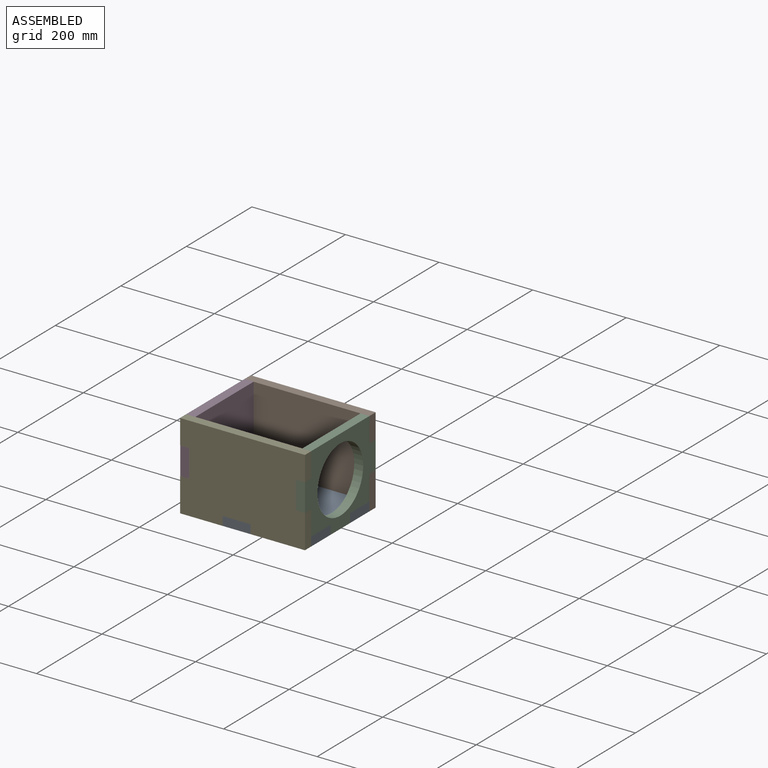
[diagram: assembled view]
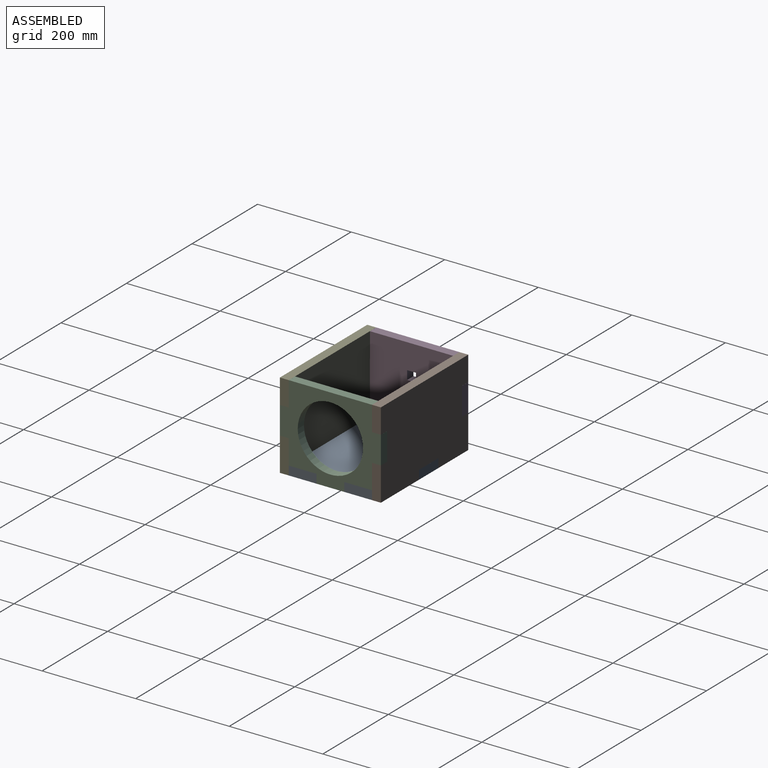
[diagram: assembled view, second angle]
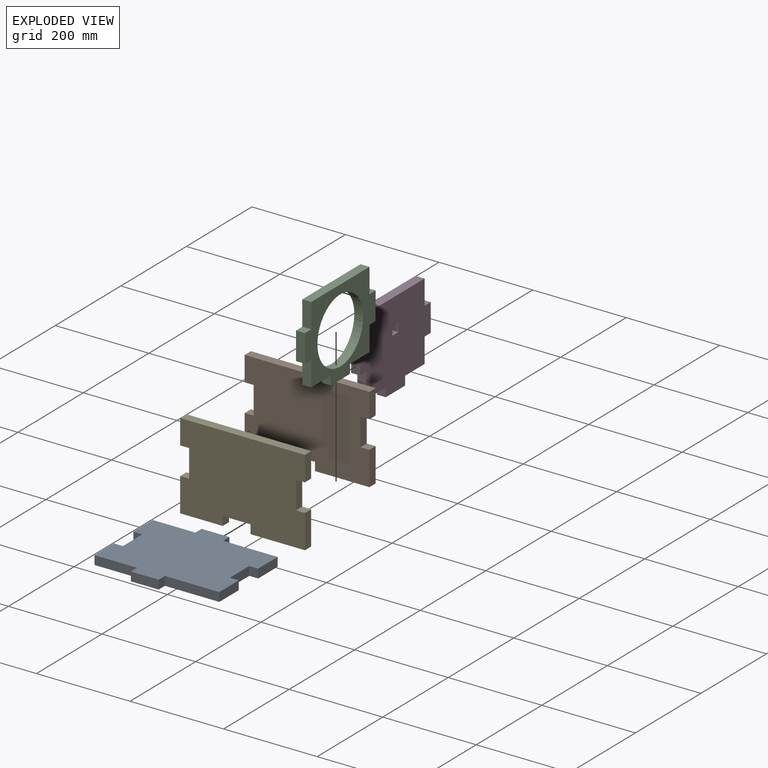
[diagram: exploded view]
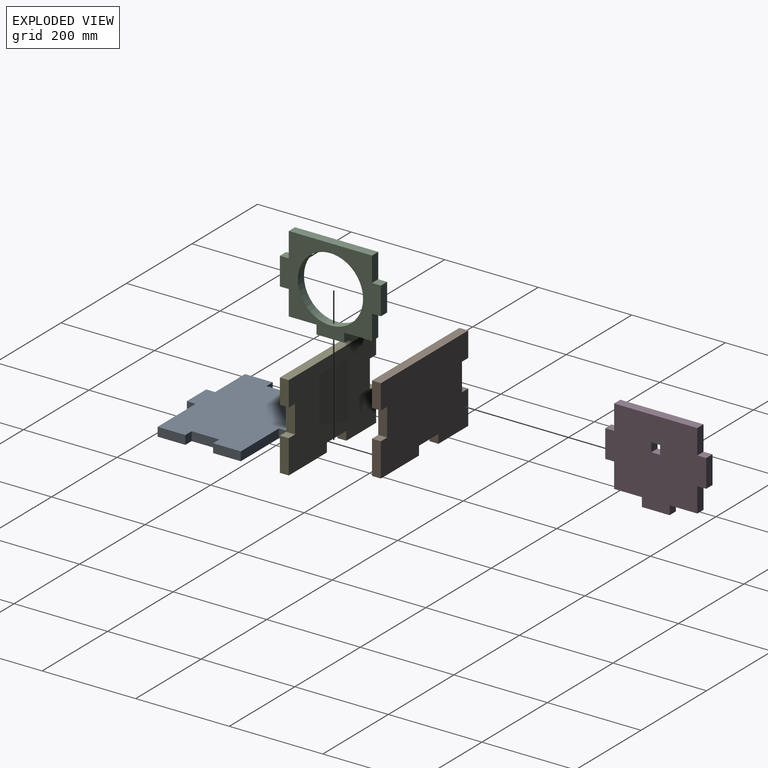
[diagram: exploded view, second angle]
ASSEMBLY  parts=5 mates=4
PART A: 22 faces, bbox 266.7x215.9x19.1 mm
  f0: plane 59.31x19.05mm, normal (1,0,0), area 1129.8mm2, adj f1,f19,f20,f21
  f1: plane 19.05x19.05mm, normal (0,1,0), area 362.9mm2, adj f0,f2,f20,f21
  f2: plane 59.31x19.05mm, normal (1,0,0), area 1129.8mm2, adj f1,f3,f20,f21
  f3: plane 19.05x19.05mm, normal (0,-1,0), area 362.9mm2, adj f2,f4,f20,f21
  f4: plane 59.18x19.05mm, normal (1,0,0), area 1127.4mm2, adj f3,f5,f20,f21
  f5: plane 116.42x19.05mm, normal (0,1,0), area 2217.7mm2, adj f4,f6,f20,f21
  f6: plane 19.05x19.05mm, normal (1,0,0), area 362.9mm2, adj f5,f7,f20,f21
  f7: plane 59.27x19.05mm, normal (0,1,0), area 1129mm2, adj f6,f8,f20,f21
  f8: plane 19.05x19.05mm, normal (-1,0,0), area 362.9mm2, adj f7,f9,f20,f21
  f9: plane 91.02x19.05mm, normal (0,1,0), area 1733.9mm2, adj f8,f10,f20,f21
  f10: plane 59.18x19.05mm, normal (-1,0,0), area 1127.4mm2, adj f9,f11,f20,f21
  f11: plane 19.05x19.05mm, normal (0,-1,0), area 362.9mm2, adj f10,f12,f20,f21
  f12: plane 59.31x19.05mm, normal (-1,0,0), area 1129.8mm2, adj f11,f13,f20,f21
  f13: plane 19.05x19.05mm, normal (0,1,0), area 362.9mm2, adj f12,f14,f20,f21
  f14: plane 59.31x19.05mm, normal (-1,0,0), area 1129.8mm2, adj f13,f15,f20,f21
  f15: plane 91.02x19.05mm, normal (0,-1,0), area 1733.9mm2, adj f14,f16,f20,f21
  f16: plane 19.05x19.05mm, normal (-1,0,0), area 362.9mm2, adj f15,f17,f20,f21
  f17: plane 59.27x19.05mm, normal (0,-1,0), area 1129mm2, adj f16,f18,f20,f21
  f18: plane 19.05x19.05mm, normal (1,0,0), area 362.9mm2, adj f17,f19,f20,f21
  f19: plane 116.42x19.05mm, normal (0,-1,0), area 2217.7mm2, adj f0,f18,f20,f21
  f20: plane 266.7x215.9mm, normal (0,0,1), area 47417.7mm2, adj f0,f1,f2,f3,f4,f5,f6,f7
  f21: plane 266.7x215.9mm, normal (0,0,-1), area 47417.7mm2, adj f0,f1,f2,f3,f4,f5,f6,f7
PART B: 18 faces, bbox 266.7x19.1x184.2 mm
  f0: plane 116.42x19.05mm, normal (0,0,-1), area 2217.7mm2, adj f1,f15,f16,f17
  f1: plane 71.97x19.05mm, normal (1,0,0), area 1371mm2, adj f0,f2,f16,f17
  f2: plane 19.05x19.05mm, normal (0,0,1), area 362.9mm2, adj f1,f3,f16,f17
  f3: plane 59.27x19.05mm, normal (1,0,0), area 1129mm2, adj f2,f4,f16,f17
  f4: plane 19.05x19.05mm, normal (0,0,-1), area 362.9mm2, adj f3,f5,f16,f17
  f5: plane 52.92x19.05mm, normal (1,0,0), area 1008.1mm2, adj f4,f6,f16,f17
  f6: plane 266.7x19.05mm, normal (0,0,1), area 5080.6mm2, adj f5,f7,f16,f17
  f7: plane 52.92x19.05mm, normal (-1,0,0), area 1008.1mm2, adj f6,f8,f16,f17
  f8: plane 19.05x19.05mm, normal (0,0,-1), area 362.9mm2, adj f7,f9,f16,f17
  f9: plane 59.27x19.05mm, normal (-1,0,0), area 1129mm2, adj f8,f10,f16,f17
  f10: plane 19.05x19.05mm, normal (0,0,1), area 362.9mm2, adj f9,f11,f16,f17
  f11: plane 71.97x19.05mm, normal (-1,0,0), area 1371mm2, adj f10,f12,f16,f17
  f12: plane 91.02x19.05mm, normal (0,0,-1), area 1733.9mm2, adj f11,f13,f16,f17
  f13: plane 19.05x19.05mm, normal (1,0,0), area 362.9mm2, adj f12,f14,f16,f17
  f14: plane 59.27x19.05mm, normal (0,0,-1), area 1129mm2, adj f13,f15,f16,f17
  f15: plane 19.05x19.05mm, normal (-1,0,0), area 362.9mm2, adj f0,f14,f16,f17
  f16: plane 266.7x184.15mm, normal (0,-1,0), area 45725.7mm2, adj f0,f1,f2,f3,f4,f5,f6,f7
  f17: plane 266.7x184.15mm, normal (0,1,0), area 45725.7mm2, adj f0,f1,f2,f3,f4,f5,f6,f7
PART C: 19 faces, bbox 19.1x215.9x184.2 mm
  f0: plane 19.05x19.05mm, normal (0,-1,0), area 362.9mm2, adj f1,f16,f17,f18
  f1: plane 59.27x19.05mm, normal (0,0,-1), area 1129mm2, adj f0,f2,f17,f18
  f2: plane 19.05x19.05mm, normal (0,1,0), area 362.9mm2, adj f1,f3,f17,f18
  f3: plane 59.27x19.05mm, normal (0,0,-1), area 1129mm2, adj f2,f4,f17,f18
  f4: plane 52.92x19.05mm, normal (0,1,0), area 1008.1mm2, adj f3,f5,f17,f18
  f5: plane 19.05x19.05mm, normal (0,0,-1), area 362.9mm2, adj f4,f6,f17,f18
  f6: plane 59.27x19.05mm, normal (0,1,0), area 1129mm2, adj f5,f7,f17,f18
  f7: plane 19.05x19.05mm, normal (0,0,1), area 362.9mm2, adj f6,f8,f17,f18
  f8: plane 52.92x19.05mm, normal (0,1,0), area 1008.1mm2, adj f7,f9,f17,f18
  f9: plane 177.8x19.05mm, normal (0,0,1), area 3387.1mm2, adj f8,f10,f17,f18
  f10: plane 52.92x19.05mm, normal (0,-1,0), area 1008.1mm2, adj f9,f11,f17,f18
  f11: plane 19.05x19.05mm, normal (0,0,1), area 362.9mm2, adj f10,f12,f17,f18
  f12: plane 59.27x19.05mm, normal (0,-1,0), area 1129mm2, adj f11,f13,f17,f18
  f13: plane 19.05x19.05mm, normal (0,0,-1), area 362.9mm2, adj f12,f14,f17,f18
  f14: plane 52.92x19.05mm, normal (0,-1,0), area 1008.1mm2, adj f13,f16,f17,f18
  f15: cylinder r=69.85mm len=139.7mm, axis (-1,0,0), area 8360.7mm2, adj f17,f18
  f16: plane 59.27x19.05mm, normal (0,0,-1), area 1129mm2, adj f0,f14,f17,f18
  f17: plane 215.9x184.15mm, normal (1,0,0), area 17414mm2, adj f0,f1,f2,f3,f4,f5,f6,f7
  f18: plane 215.9x184.15mm, normal (-1,0,0), area 17414mm2, adj f0,f1,f2,f3,f4,f5,f6,f7
PART D: 22 faces, bbox 19.1x215.9x184.2 mm
  f0: plane 19.05x19.05mm, normal (0,-1,0), area 362.9mm2, adj f1,f19,f20,f21
  f1: plane 59.27x19.05mm, normal (0,0,-1), area 1129mm2, adj f0,f2,f20,f21
  f2: plane 19.05x19.05mm, normal (0,1,0), area 362.9mm2, adj f1,f3,f20,f21
  f3: plane 59.27x19.05mm, normal (0,0,-1), area 1129mm2, adj f2,f4,f20,f21
  f4: plane 52.92x19.05mm, normal (0,1,0), area 1008.1mm2, adj f3,f5,f20,f21
  f5: plane 19.05x19.05mm, normal (0,0,-1), area 362.9mm2, adj f4,f6,f20,f21
  f6: plane 59.27x19.05mm, normal (0,1,0), area 1129mm2, adj f5,f7,f20,f21
  f7: plane 19.05x19.05mm, normal (0,0,1), area 362.9mm2, adj f6,f8,f20,f21
  f8: plane 52.92x19.05mm, normal (0,1,0), area 1008.1mm2, adj f7,f9,f20,f21
  f9: plane 177.8x19.05mm, normal (0,0,1), area 3387.1mm2, adj f8,f10,f20,f21
  f10: plane 52.92x19.05mm, normal (0,-1,0), area 1008.1mm2, adj f9,f11,f20,f21
  f11: plane 19.05x19.05mm, normal (0,0,1), area 362.9mm2, adj f10,f12,f20,f21
  f12: plane 59.27x19.05mm, normal (0,-1,0), area 1129mm2, adj f11,f13,f20,f21
  f13: plane 19.05x19.05mm, normal (0,0,-1), area 362.9mm2, adj f12,f14,f20,f21
  f14: plane 52.92x19.05mm, normal (0,-1,0), area 1008.1mm2, adj f13,f19,f20,f21
  f15: plane 19.05x19.05mm, normal (0,0,1), area 362.9mm2, adj f16,f18,f20,f21
  f16: plane 19.05x19.05mm, normal (0,1,0), area 362.9mm2, adj f15,f17,f20,f21
  f17: plane 19.05x19.05mm, normal (0,0,-1), area 362.9mm2, adj f16,f18,f20,f21
  f18: plane 19.05x19.05mm, normal (0,-1,0), area 362.9mm2, adj f15,f17,f20,f21
  f19: plane 59.27x19.05mm, normal (0,0,-1), area 1129mm2, adj f0,f14,f20,f21
  f20: plane 215.9x184.15mm, normal (1,0,0), area 32379mm2, adj f0,f1,f2,f3,f4,f5,f6,f7
  f21: plane 215.9x184.15mm, normal (-1,0,0), area 32379mm2, adj f0,f1,f2,f3,f4,f5,f6,f7
PART E: same geometry as B
PLACE A t=(-46.66,-14.39,-1.7)mm
PLACE B t=(-14.91,93.56,99.9)mm
PLACE C t=(80.34,-14.35,99.9)mm
PLACE D t=(-167.31,-14.31,99.9)mm
PLACE E t=(-14.91,-103.29,99.9)mm
MATE fastened D.f2 <-> A.f11  axis (0,1,0) through (-167.31,15.33,-1.7)mm
MATE fastened E.f13 <-> A.f16  axis (-1,0,0) through (-76.29,-122.34,-1.7)mm
MATE fastened B.f13 <-> A.f8  axis (1,0,0) through (-76.29,74.51,-1.7)mm
MATE fastened C.f0 <-> A.f1  axis (0,1,0) through (99.39,-43.98,-1.7)mm
